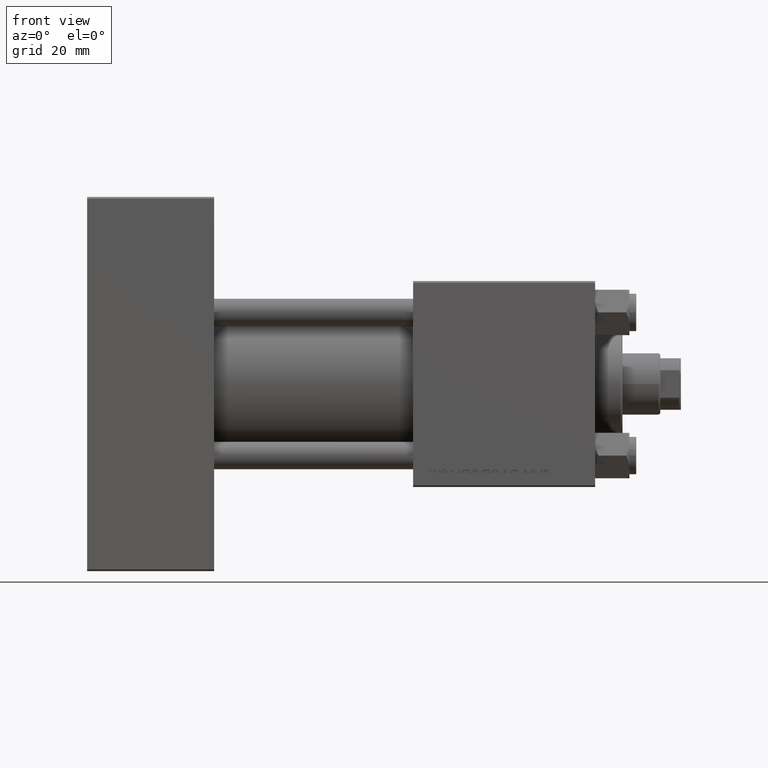
[diagram: clean part render]
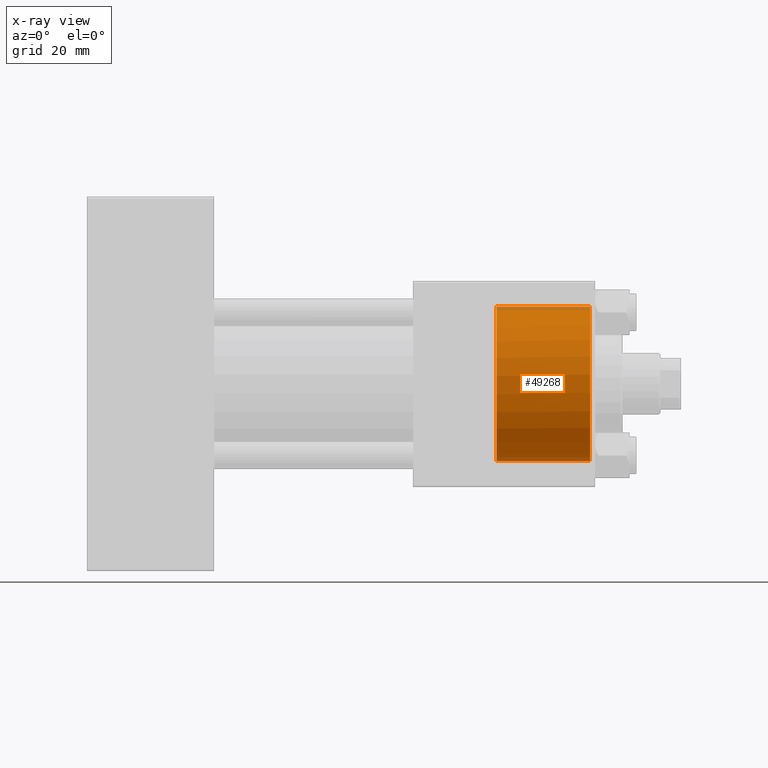
[diagram: x-ray — body ghosted, one internal face saturated and labeled with its STEP entity id]
A machine part, front view, then the same camera in x-ray: the body is ghosted and one INTERNAL B-rep face — a face not visible from any outside direction — is saturated and labeled: STEP entity #49268.
In plain terms, the highlighted cylindrical surface (partial cylindrical patch) has radius 22.5 mm, axis along (1, 0, 0).
Its self-contained STEP definition (entity closure, byte-faithful):
#280 = VERTEX_POINT ( 'NONE', #40929 ) ;
#3231 = AXIS2_PLACEMENT_3D ( 'NONE', #46395, #46896, #11769 ) ;
#4657 = CARTESIAN_POINT ( 'NONE',  ( 119.3300000000000125, 2.755455270027974659E-15, 22.50000000000000355 ) ) ;
#8438 = CARTESIAN_POINT ( 'NONE',  ( 119.2999999999999829, -0.7063285354565423946, 22.48891060056044111 ) ) ;
#8923 = CARTESIAN_POINT ( 'NONE',  ( 119.3300000000000125, -0.2354428451521790311, 22.50000000000000355 ) ) ;
#11150 = CYLINDRICAL_SURFACE ( 'NONE', #44464, 22.50000000000000355 ) ;
#11769 = DIRECTION ( 'NONE',  ( 0.000000000000000000, 0.000000000000000000, -1.000000000000000000 ) ) ;
#13867 = CARTESIAN_POINT ( 'NONE',  ( 119.2999999999999829, 0.000000000000000000, -22.50000000000000355 ) ) ;
#14128 = DIRECTION ( 'NONE',  ( 1.000000000000000000, -0.000000000000000000, -0.000000000000000000 ) ) ;
#14134 = ORIENTED_EDGE ( 'NONE', *, *, #42726, .T. ) ;
#15033 = CARTESIAN_POINT ( 'NONE',  ( 146.5000000000000284, 0.000000000000000000, 0.000000000000000000 ) ) ;
#15418 = DIRECTION ( 'NONE',  ( 0.000000000000000000, 0.000000000000000000, -1.000000000000000000 ) ) ;
#15747 = CARTESIAN_POINT ( 'NONE',  ( 119.3200361445783102, -0.4708856903043606712, 22.49630535626710426 ) ) ;
#16449 = EDGE_CURVE ( 'NONE', #45923, #49345, #36742, .T. ) ;
#17157 = LINE ( 'NONE', #13867, #42050 ) ;
#24366 = EDGE_LOOP ( 'NONE', ( #14134, #43931, #36565, #24627, #45952 ) ) ;
#24627 = ORIENTED_EDGE ( 'NONE', *, *, #44807, .F. ) ;
#25509 = LINE ( 'NONE', #37623, #29501 ) ;
#28352 = DIRECTION ( 'NONE',  ( 0.000000000000000000, 0.000000000000000000, 1.000000000000000000 ) ) ;
#28602 = EDGE_CURVE ( 'NONE', #43481, #45923, #25509, .T. ) ;
#29501 = VECTOR ( 'NONE', #14128, 1000.000000000000000 ) ;
#30096 = DIRECTION ( 'NONE',  ( 1.000000000000000000, -0.000000000000000000, -0.000000000000000000 ) ) ;
#33238 = CARTESIAN_POINT ( 'NONE',  ( 119.3300000000000125, 2.755455270027974659E-15, 22.50000000000000355 ) ) ;
#34894 = FACE_OUTER_BOUND ( 'NONE', #24366, .T. ) ;
#36292 = CIRCLE ( 'NONE', #3231, 22.50000000000000355 ) ;
#36565 = ORIENTED_EDGE ( 'NONE', *, *, #16449, .T. ) ;
#36742 = CIRCLE ( 'NONE', #39200, 22.50000000000000355 ) ;
#36831 = B_SPLINE_CURVE_WITH_KNOTS ( 'NONE', 3,
 ( #8438, #15747, #8923, #4657 ),
 .UNSPECIFIED., .F., .F.,
 ( 4, 4 ),
 ( 0.000000000000000000, 0.0007063285354565450877 ),
 .UNSPECIFIED. ) ;
#37623 = CARTESIAN_POINT ( 'NONE',  ( 119.2999999999999829, 2.755455298081545172E-15, 22.50000000000000355 ) ) ;
#39200 = AXIS2_PLACEMENT_3D ( 'NONE', #15033, #47571, #28352 ) ;
#40412 = DIRECTION ( 'NONE',  ( 1.000000000000000000, -0.000000000000000000, -0.000000000000000000 ) ) ;
#40929 = CARTESIAN_POINT ( 'NONE',  ( 119.2999999999999829, 0.000000000000000000, -22.50000000000000355 ) ) ;
#41734 = CARTESIAN_POINT ( 'NONE',  ( 119.2999999999999829, 0.000000000000000000, 0.000000000000000000 ) ) ;
#41857 = CARTESIAN_POINT ( 'NONE',  ( 146.5000000000000284, 2.755455298081545172E-15, 22.50000000000000355 ) ) ;
#42050 = VECTOR ( 'NONE', #40412, 1000.000000000000000 ) ;
#42726 = EDGE_CURVE ( 'NONE', #48025, #43481, #36831, .T. ) ;
#43481 = VERTEX_POINT ( 'NONE', #33238 ) ;
#43717 = CARTESIAN_POINT ( 'NONE',  ( 146.5000000000000284, 0.000000000000000000, -22.50000000000000355 ) ) ;
#43931 = ORIENTED_EDGE ( 'NONE', *, *, #28602, .T. ) ;
#44464 = AXIS2_PLACEMENT_3D ( 'NONE', #41734, #30096, #15418 ) ;
#44807 = EDGE_CURVE ( 'NONE', #280, #49345, #17157, .T. ) ;
#45822 = CARTESIAN_POINT ( 'NONE',  ( 119.2999999999999829, -0.7063285354565423946, 22.48891060056044111 ) ) ;
#45923 = VERTEX_POINT ( 'NONE', #41857 ) ;
#45952 = ORIENTED_EDGE ( 'NONE', *, *, #46033, .F. ) ;
#46033 = EDGE_CURVE ( 'NONE', #48025, #280, #36292, .T. ) ;
#46395 = CARTESIAN_POINT ( 'NONE',  ( 119.2999999999999829, 0.000000000000000000, 0.000000000000000000 ) ) ;
#46896 = DIRECTION ( 'NONE',  ( 1.000000000000000000, 0.000000000000000000, 0.000000000000000000 ) ) ;
#47571 = DIRECTION ( 'NONE',  ( 1.000000000000000000, 0.000000000000000000, 0.000000000000000000 ) ) ;
#48025 = VERTEX_POINT ( 'NONE', #45822 ) ;
#49268 = ADVANCED_FACE ( 'NONE', ( #34894 ), #11150, .F. ) ;
#49345 = VERTEX_POINT ( 'NONE', #43717 ) ;